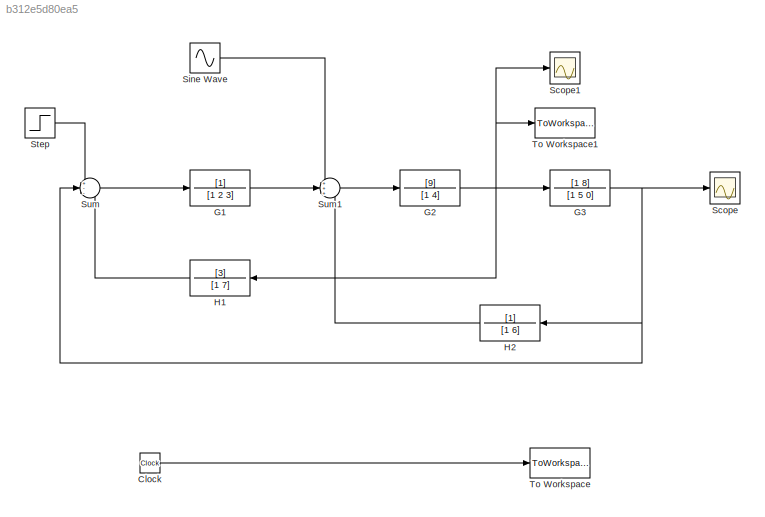
MODEL slx_b312e5d80ea5
KIND model
CONFIG AbsTol = auto
CONFIG FixedStep = auto
CONFIG MaxStep = auto
CONFIG MinStep = auto
CONFIG RelTol = 1e-3
CONFIG SampleTimeConstraint = Unconstrained
CONFIG Solver = VariableStepAuto
CONFIG SolverMode = Auto
CONFIG SolverName = VariableStepAuto
CONFIG StartTime = 0.0
CONFIG StopTime = 10.0
BLOCK [Clock] Clock
BLOCK [TransferFcn] G1
  Denominator = [1 2 3]
BLOCK [TransferFcn] G2
  Denominator = [1 4]
  Numerator = [9]
BLOCK [TransferFcn] G3
  Denominator = [1 5 0]
  Numerator = [1 8]
BLOCK [TransferFcn] H1
  Denominator = [1 7]
  Numerator = [3]
BLOCK [TransferFcn] H2
  Denominator = [1 6]
BLOCK [Scope] Scope
  Ports = [1]
  ScopeSpecificationString = Simulink.scopes.TimeScopeBlockCfg('CurrentConfiguration', extmgr.ConfigurationSet(extmgr.Configuration('Core','General UI',true),extmgr.Configuration('Core','Source UI',true),extmgr.Configuration('Sources','WiredSimulink',true),extmgr.Configuration('Visuals','Time Domain',true,'SerializedDisplays',{struct('MinYLimReal','-0.34698','MaxYLimReal','3.12279','YLabelReal','','MinYLimMag','0.00000','MaxY...<+1322ch>
BLOCK [Scope] Scope1
  Ports = [1]
  ScopeSpecificationString = Simulink.scopes.TimeScopeBlockCfg('CurrentConfiguration', extmgr.ConfigurationSet(extmgr.Configuration('Core','General UI',true),extmgr.Configuration('Core','Source UI',true),extmgr.Configuration('Sources','WiredSimulink',true,'DataLoggingVariableName','ScopeData1'),extmgr.Configuration('Visuals','Time Domain',true,'SerializedDisplays',{struct('MinYLimReal','-1.14695','MaxYLimReal','1.48969','YLab...<+1361ch>
BLOCK [Sin] Sine Wave
  Amplitude = 0.2
  Frequency = 2
  Ports = [0, 1]
  SampleTime = 0
BLOCK [Step] Step
  SampleTime = 0
  Time = 0
BLOCK [Sum] Sum
  IconShape = round
  InputSameDT = off
  Inputs = +--
  OutDataTypeStr = Inherit: Inherit via internal rule
  Ports = [3, 1]
  SaturateOnIntegerOverflow = off
BLOCK [Sum] Sum1
  IconShape = round
  InputSameDT = off
  Inputs = +++
  OutDataTypeStr = Inherit: Inherit via internal rule
  Ports = [3, 1]
  SaturateOnIntegerOverflow = off
BLOCK [ToWorkspace] To Workspace
  FixptAsFi = on
  MaxDataPoints = inf
  Ports = [1]
  SampleTime = -1
  Save2DSignal = 3-D array (concatenate along third dimension)
  VariableName = t
BLOCK [ToWorkspace] To Workspace1
  FixptAsFi = on
  MaxDataPoints = inf
  Ports = [1]
  SampleTime = -1
  Save2DSignal = 3-D array (concatenate along third dimension)
  VariableName = E3
LINE Clock:1 -> To Workspace:1
LINE G1:1 -> Sum1:2
NET G2:1 -> G3:1, H1:1, Scope1:1, To Workspace1:1
NET G3:1 -> H2:1, Scope:1, Sum:2
LINE H1:1 -> Sum:3
LINE H2:1 -> Sum1:3
LINE Sine Wave:1 -> Sum1:1
LINE Step:1 -> Sum:1
LINE Sum1:1 -> G2:1
LINE Sum:1 -> G1:1
note: NET lines group one-source signal fan-out (src -> all destinations, sorted); 1:1 wires keep LINE
